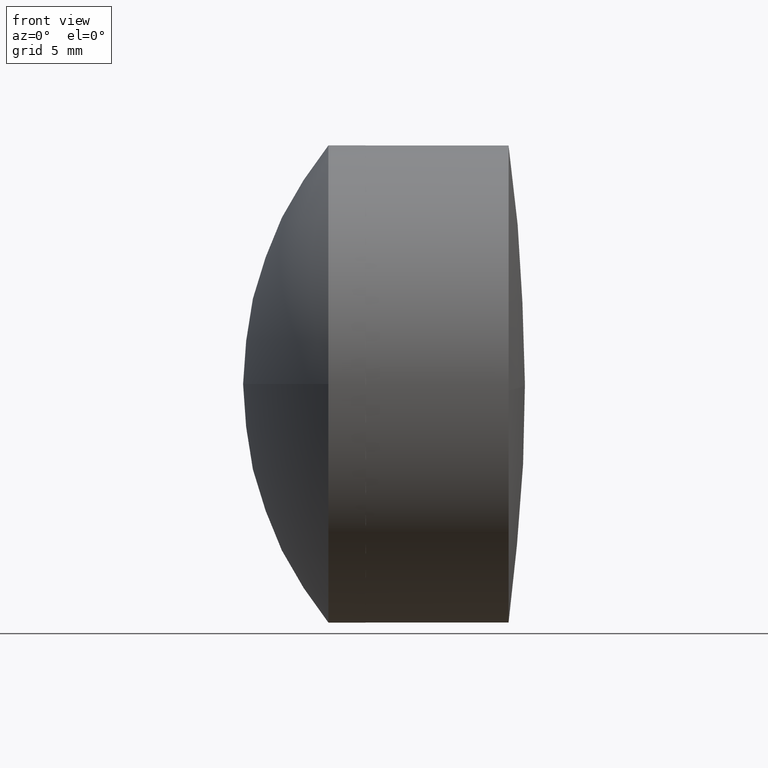
[diagram: clean part render]
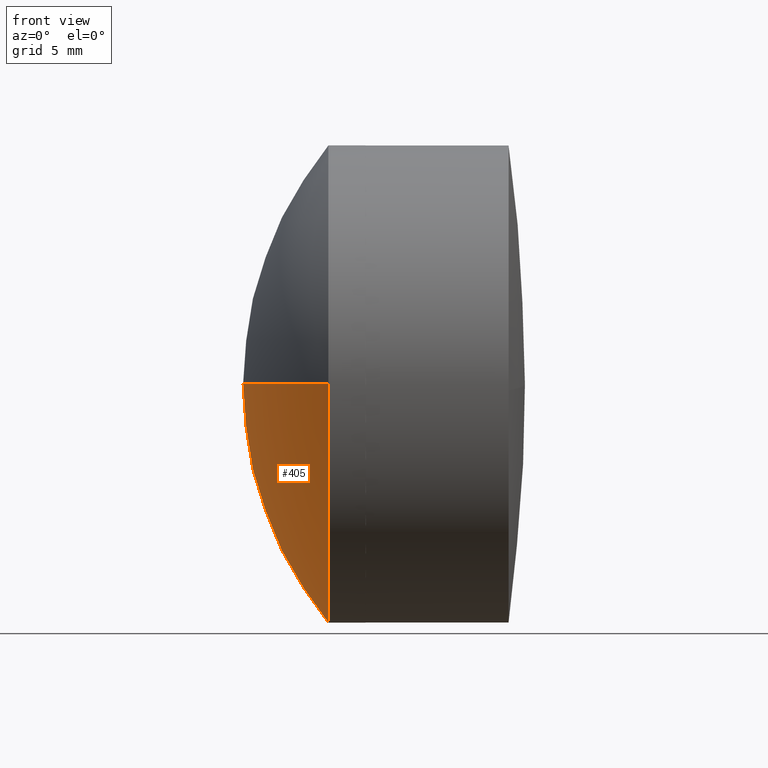
[diagram: same view with one face highlighted and labeled with its STEP entity id]
A machine part, front view. The second image highlights one B-rep face of the part: STEP entity #405.
In plain terms, the highlighted spherical surface has radius 20.03 mm.
Its self-contained STEP definition (entity closure, byte-faithful):
#2 = DIRECTION ( 'NONE',  ( -0.000000000000000000, 0.000000000000000000, 1.000000000000000000 ) ) ;
#8 = DIRECTION ( 'NONE',  ( -0.000000000000000000, 0.000000000000000000, -1.000000000000000000 ) ) ;
#37 = EDGE_CURVE ( 'NONE', #83, #397, #151, .T. ) ;
#38 = DIRECTION ( 'NONE',  ( 0.000000000000000000, 1.000000000000000000, 0.000000000000000000 ) ) ;
#39 = AXIS2_PLACEMENT_3D ( 'NONE', #315, #8, #38 ) ;
#65 = CARTESIAN_POINT ( 'NONE',  ( -19.63995810697359445, 32.03284803661706093, 0.000000000000000000 ) ) ;
#81 = AXIS2_PLACEMENT_3D ( 'NONE', #422, #145, #144 ) ;
#83 = VERTEX_POINT ( 'NONE', #386 ) ;
#87 = VERTEX_POINT ( 'NONE', #262 ) ;
#115 = AXIS2_PLACEMENT_3D ( 'NONE', #65, #2, #272 ) ;
#144 = DIRECTION ( 'NONE',  ( 0.000000000000000000, 0.000000000000000000, 1.000000000000000000 ) ) ;
#145 = DIRECTION ( 'NONE',  ( -1.000000000000000000, -0.000000000000000000, -0.000000000000000000 ) ) ;
#150 = ORIENTED_EDGE ( 'NONE', *, *, #446, .T. ) ;
#151 = CIRCLE ( 'NONE', #193, 12.69999999999999929 ) ;
#171 = ORIENTED_EDGE ( 'NONE', *, *, #37, .T. ) ;
#176 = AXIS2_PLACEMENT_3D ( 'NONE', #291, #227, #182 ) ;
#182 = DIRECTION ( 'NONE',  ( 0.000000000000000000, 1.000000000000000000, 1.224646799147353207E-16 ) ) ;
#193 = AXIS2_PLACEMENT_3D ( 'NONE', #285, #353, #294 ) ;
#209 = CARTESIAN_POINT ( 'NONE',  ( -35.12901553471916571, 32.03284803661706093, -12.69999999999999929 ) ) ;
#227 = DIRECTION ( 'NONE',  ( 0.000000000000000000, 1.224646799147353207E-16, -1.000000000000000000 ) ) ;
#249 = CIRCLE ( 'NONE', #176, 20.03000000000000469 ) ;
#250 = VERTEX_POINT ( 'NONE', #274 ) ;
#253 = SPHERICAL_SURFACE ( 'NONE', #39, 20.03000000000000469 ) ;
#262 = CARTESIAN_POINT ( 'NONE',  ( -35.12901553471916571, 19.33284803661705809, -1.555301434917138630E-15 ) ) ;
#265 = EDGE_CURVE ( 'NONE', #83, #250, #330, .T. ) ;
#272 = DIRECTION ( 'NONE',  ( 1.000000000000000000, 0.000000000000000000, 0.000000000000000000 ) ) ;
#274 = CARTESIAN_POINT ( 'NONE',  ( -39.66995810697360270, 32.03284803661706093, 0.000000000000000000 ) ) ;
#285 = CARTESIAN_POINT ( 'NONE',  ( -35.12901553471916571, 32.03284803661706093, 0.000000000000000000 ) ) ;
#291 = CARTESIAN_POINT ( 'NONE',  ( -19.63995810697359445, 32.03284803661706093, 0.000000000000000000 ) ) ;
#294 = DIRECTION ( 'NONE',  ( 0.000000000000000000, 0.000000000000000000, 1.000000000000000000 ) ) ;
#313 = EDGE_CURVE ( 'NONE', #397, #87, #369, .T. ) ;
#315 = CARTESIAN_POINT ( 'NONE',  ( -19.63995810697359445, 32.03284803661706093, 0.000000000000000000 ) ) ;
#330 = CIRCLE ( 'NONE', #115, 20.03000000000000469 ) ;
#342 = FACE_OUTER_BOUND ( 'NONE', #364, .T. ) ;
#353 = DIRECTION ( 'NONE',  ( -1.000000000000000000, -0.000000000000000000, -0.000000000000000000 ) ) ;
#364 = EDGE_LOOP ( 'NONE', ( #171, #403, #150, #445 ) ) ;
#369 = CIRCLE ( 'NONE', #81, 12.69999999999999929 ) ;
#386 = CARTESIAN_POINT ( 'NONE',  ( -35.12901553471916571, 44.73284803661706377, 0.000000000000000000 ) ) ;
#397 = VERTEX_POINT ( 'NONE', #209 ) ;
#403 = ORIENTED_EDGE ( 'NONE', *, *, #313, .T. ) ;
#405 = ADVANCED_FACE ( 'NONE', ( #342 ), #253, .T. ) ;
#422 = CARTESIAN_POINT ( 'NONE',  ( -35.12901553471916571, 32.03284803661706093, 0.000000000000000000 ) ) ;
#445 = ORIENTED_EDGE ( 'NONE', *, *, #265, .F. ) ;
#446 = EDGE_CURVE ( 'NONE', #87, #250, #249, .T. ) ;